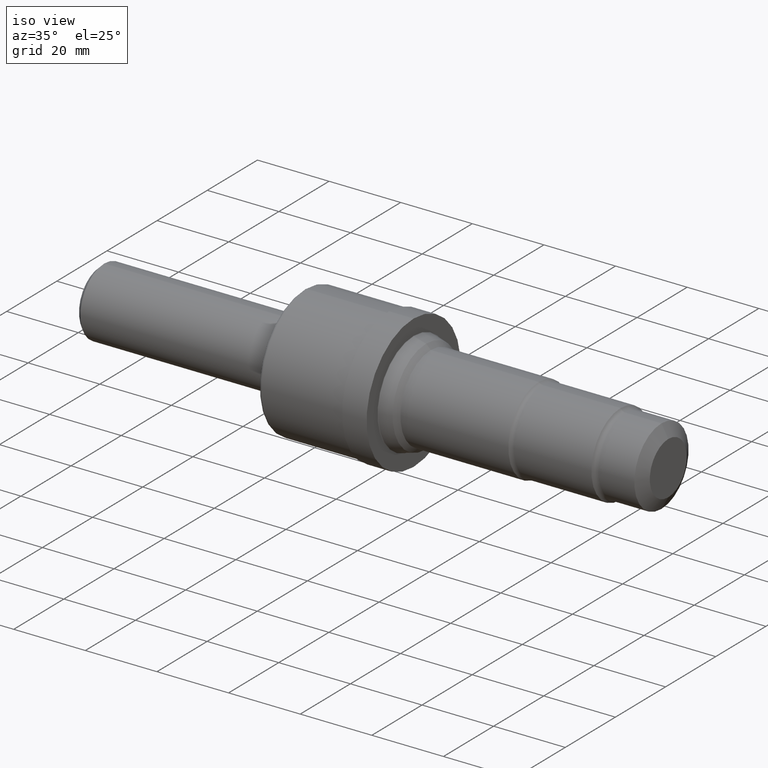
[diagram: clean part render]
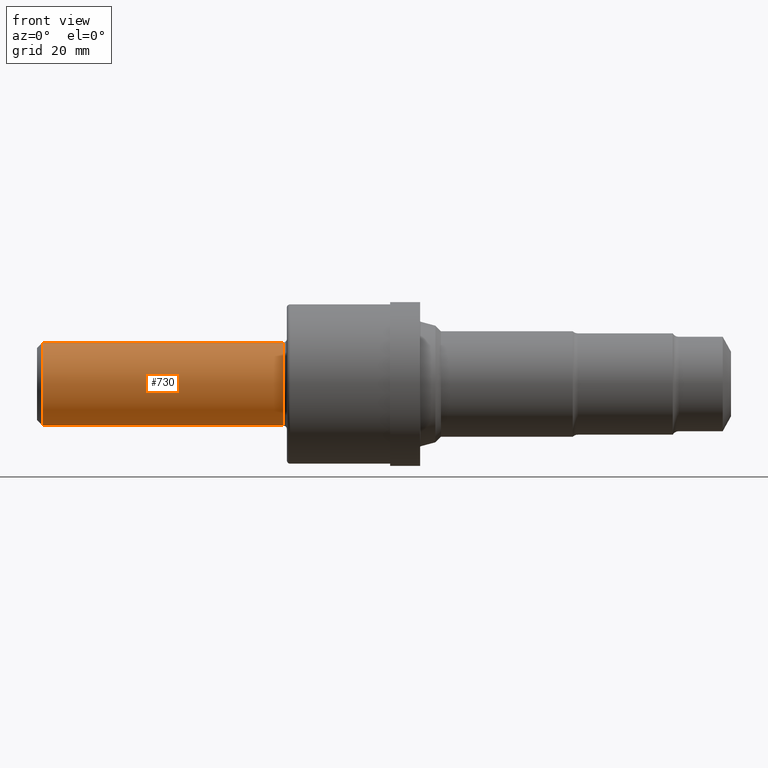
[diagram: tour spotlight — one face highlighted and labeled with its STEP entity id]
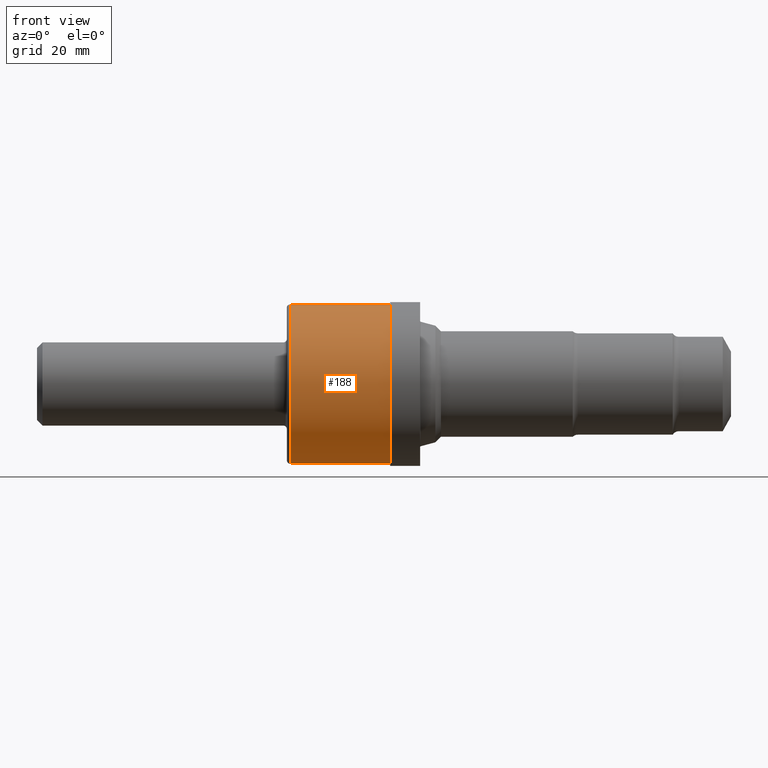
[diagram: tour spotlight — one face highlighted and labeled with its STEP entity id]
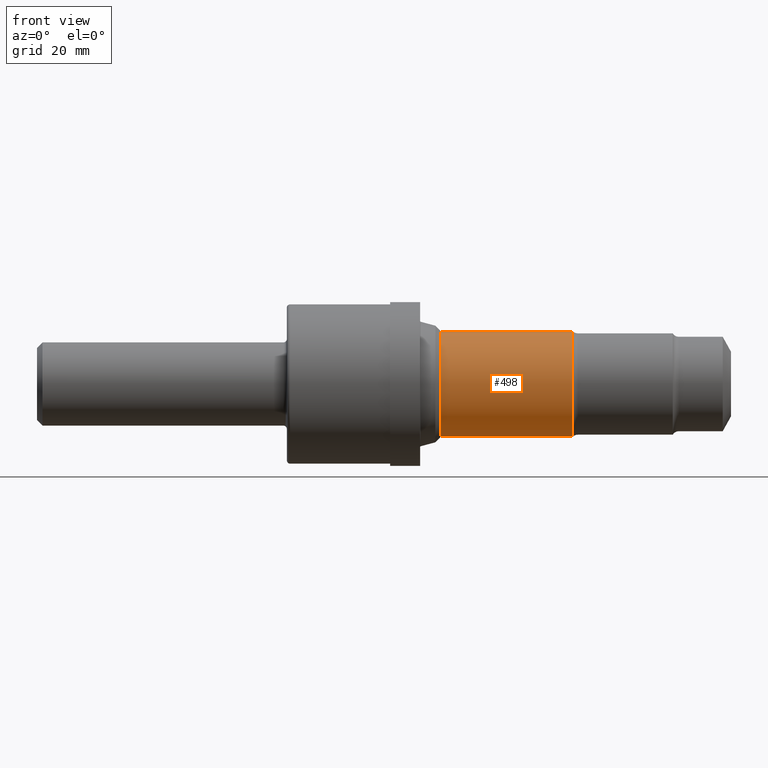
[diagram: tour spotlight — one face highlighted and labeled with its STEP entity id]
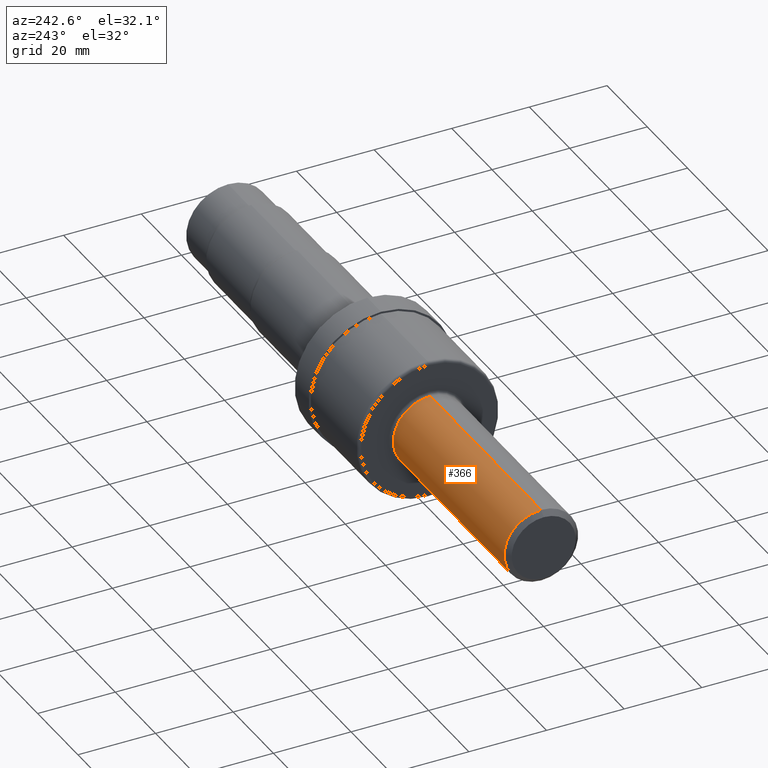
[diagram: tour spotlight — one face highlighted and labeled with its STEP entity id]
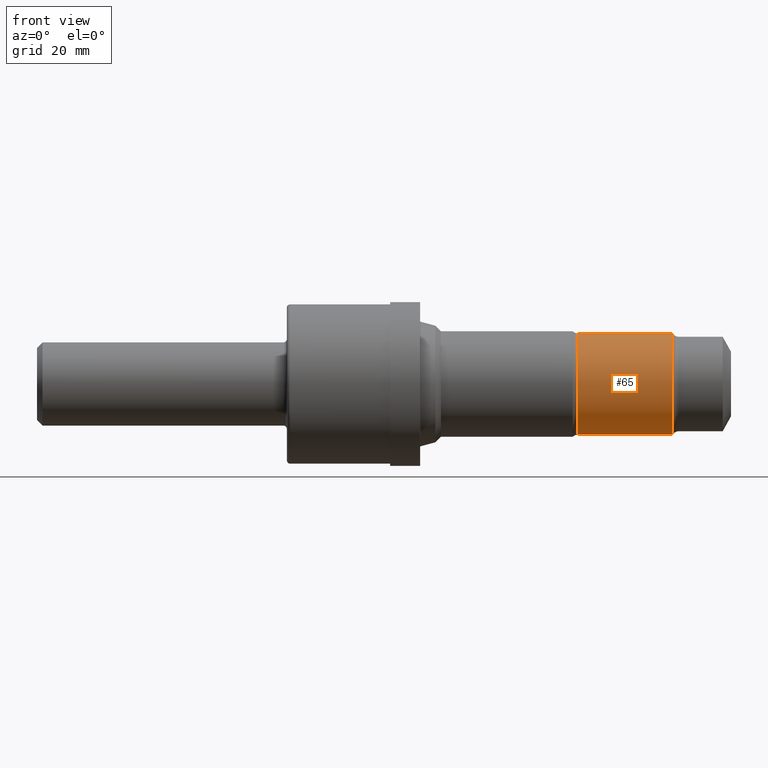
[diagram: tour spotlight — one face highlighted and labeled with its STEP entity id]
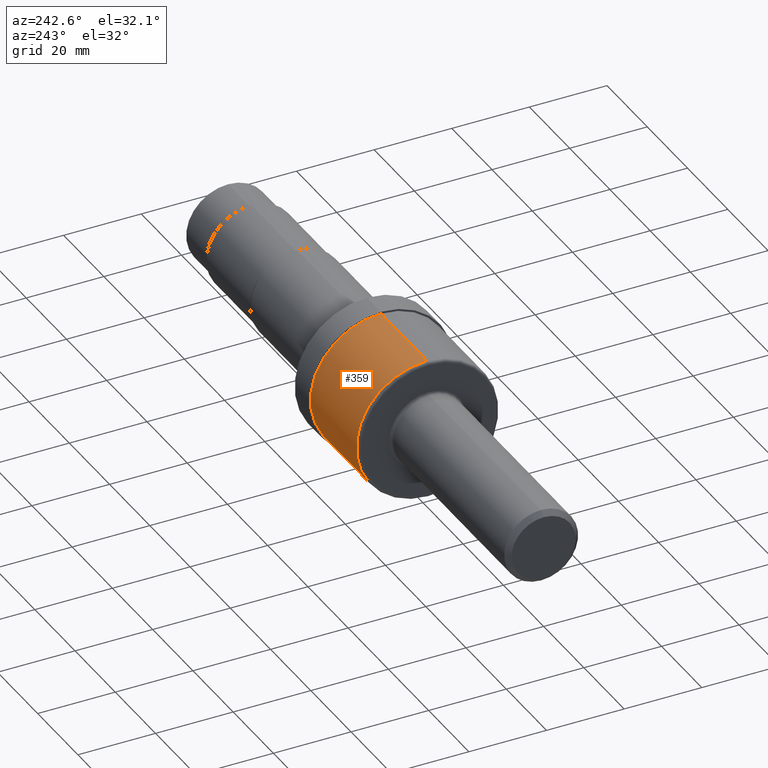
[diagram: tour spotlight — one face highlighted and labeled with its STEP entity id]
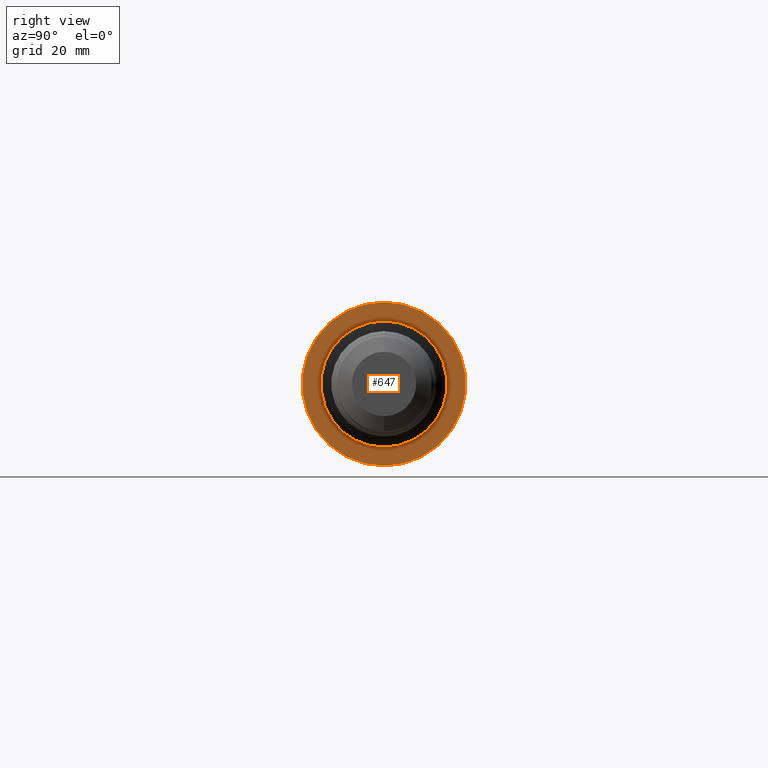
[diagram: tour spotlight — one face highlighted and labeled with its STEP entity id]
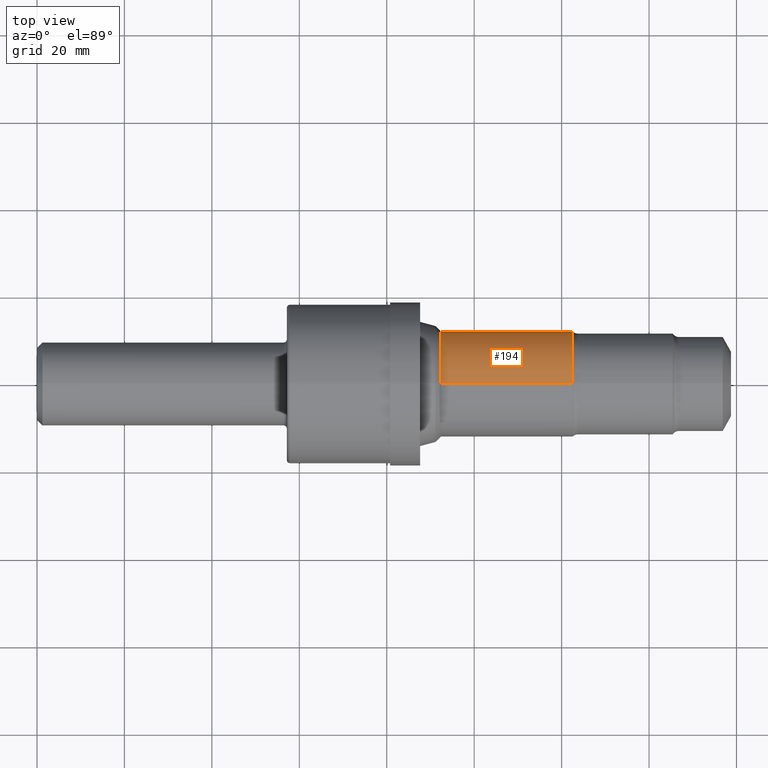
[diagram: tour spotlight — one face highlighted and labeled with its STEP entity id]
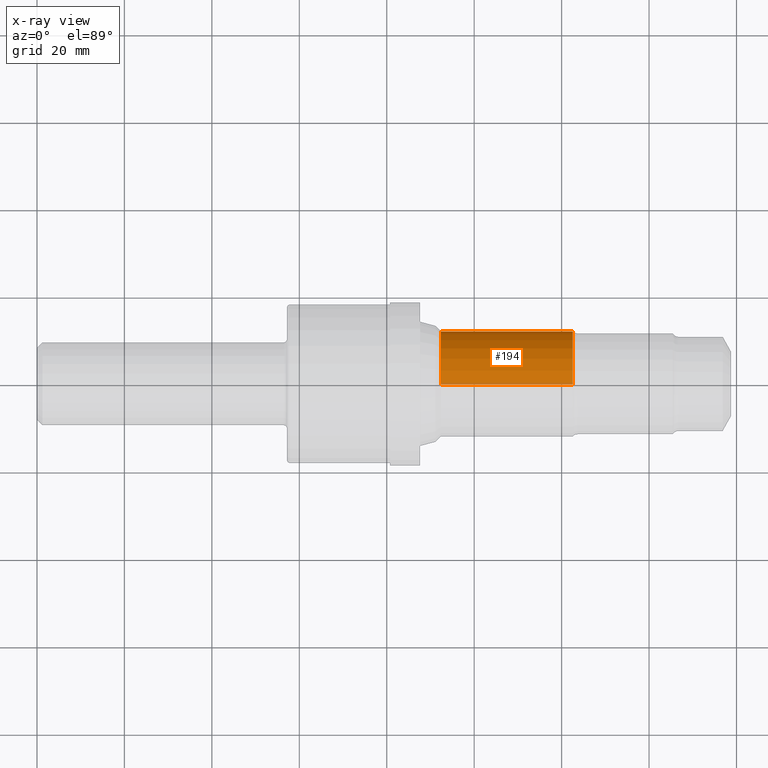
[diagram: x-ray of the same camera — body ghosted, this tour face saturated]
A machine part: a face-by-face anatomy tour. The part has 35 B-rep faces; the first image is the clean iso view, then the 8 largest visible faces are spotlighted one at a time (largest first), each with its STEP entity span.

Face 1 — front view, entity #730. In plain terms, the highlighted cylindrical surface (partial cylindrical patch) has radius 9.5212 mm, axis along (-1, -0, -0).
Definition (entity closure, byte-faithful):
#1 = CARTESIAN_POINT ( 'NONE',  ( 0.05000000000000000278, 4.590588526603853748E-17, 0.3748500000000000165 ) ) ;
#9 = CARTESIAN_POINT ( 'NONE',  ( 2.220000000000000195, 4.590588526603861143E-17, -0.3748500000000006271 ) ) ;
#56 = AXIS2_PLACEMENT_3D ( 'NONE', #600, #116, #878 ) ;
#96 = VERTEX_POINT ( 'NONE', #1 ) ;
#109 = VECTOR ( 'NONE', #605, 39.37007874015748143 ) ;
#113 = DIRECTION ( 'NONE',  ( -1.000000000000000000, -0.0000000000000000000, -0.0000000000000000000 ) ) ;
#116 = DIRECTION ( 'NONE',  ( -1.000000000000000000, -0.0000000000000000000, -0.0000000000000000000 ) ) ;
#131 = CIRCLE ( 'NONE', #794, 0.3748500000000006271 ) ;
#193 = EDGE_LOOP ( 'NONE', ( #481, #851, #370, #455 ) ) ;
#214 = EDGE_CURVE ( 'NONE', #436, #96, #929, .T. ) ;
#237 = CARTESIAN_POINT ( 'NONE',  ( 0.0000000000000000000, 4.590588526603858678E-17, -0.3748500000000003496 ) ) ;
#246 = AXIS2_PLACEMENT_3D ( 'NONE', #294, #378, #944 ) ;
#288 = VERTEX_POINT ( 'NONE', #9 ) ;
#294 = CARTESIAN_POINT ( 'NONE',  ( 0.0000000000000000000, 0.0000000000000000000, 0.0000000000000000000 ) ) ;
#299 = CARTESIAN_POINT ( 'NONE',  ( 2.220000000000000195, 0.0000000000000000000, 0.3748500000000006271 ) ) ;
#332 = LINE ( 'NONE', #237, #109 ) ;
#334 = CARTESIAN_POINT ( 'NONE',  ( 2.220000000000000195, 0.0000000000000000000, 0.0000000000000000000 ) ) ;
#363 = CARTESIAN_POINT ( 'NONE',  ( 0.0000000000000000000, 0.0000000000000000000, 0.3748500000000003496 ) ) ;
#370 = ORIENTED_EDGE ( 'NONE', *, *, #676, .T. ) ;
#378 = DIRECTION ( 'NONE',  ( -1.000000000000000000, -0.0000000000000000000, -0.0000000000000000000 ) ) ;
#436 = VERTEX_POINT ( 'NONE', #516 ) ;
#443 = DIRECTION ( 'NONE',  ( -1.000000000000000000, -0.0000000000000000000, -0.0000000000000000000 ) ) ;
#455 = ORIENTED_EDGE ( 'NONE', *, *, #214, .F. ) ;
#470 = EDGE_CURVE ( 'NONE', #288, #768, #131, .T. ) ;
#481 = ORIENTED_EDGE ( 'NONE', *, *, #847, .F. ) ;
#516 = CARTESIAN_POINT ( 'NONE',  ( 0.05000000000000000278, 0.0000000000000000000, -0.3748500000000000165 ) ) ;
#571 = FACE_OUTER_BOUND ( 'NONE', #193, .T. ) ;
#600 = CARTESIAN_POINT ( 'NONE',  ( 0.05000000000000000278, 0.0000000000000000000, 0.0000000000000000000 ) ) ;
#605 = DIRECTION ( 'NONE',  ( -1.000000000000000000, -0.0000000000000000000, -0.0000000000000000000 ) ) ;
#623 = LINE ( 'NONE', #363, #818 ) ;
#676 = EDGE_CURVE ( 'NONE', #768, #96, #623, .T. ) ;
#730 = ADVANCED_FACE ( 'NONE', ( #571 ), #933, .T. ) ;
#768 = VERTEX_POINT ( 'NONE', #299 ) ;
#794 = AXIS2_PLACEMENT_3D ( 'NONE', #334, #113, #837 ) ;
#818 = VECTOR ( 'NONE', #443, 39.37007874015748143 ) ;
#837 = DIRECTION ( 'NONE',  ( 0.0000000000000000000, 0.0000000000000000000, 1.000000000000000000 ) ) ;
#847 = EDGE_CURVE ( 'NONE', #288, #436, #332, .T. ) ;
#851 = ORIENTED_EDGE ( 'NONE', *, *, #470, .T. ) ;
#878 = DIRECTION ( 'NONE',  ( 0.0000000000000000000, 0.0000000000000000000, 1.000000000000000000 ) ) ;
#929 = CIRCLE ( 'NONE', #56, 0.3748500000000000165 ) ;
#933 = CYLINDRICAL_SURFACE ( 'NONE', #246, 0.3748500000000003496 ) ;
#944 = DIRECTION ( 'NONE',  ( 0.0000000000000000000, 0.0000000000000000000, 1.000000000000000000 ) ) ;

Face 2 — front view, entity #188. In plain terms, the highlighted cylindrical surface (partial cylindrical patch) has radius 18.2245 mm, axis along (-1, -0, -0).
Definition (entity closure, byte-faithful):
#13 = DIRECTION ( 'NONE',  ( -1.000000000000000000, -0.0000000000000000000, -0.0000000000000000000 ) ) ;
#30 = ORIENTED_EDGE ( 'NONE', *, *, #183, .T. ) ;
#41 = LINE ( 'NONE', #81, #770 ) ;
#81 = CARTESIAN_POINT ( 'NONE',  ( 0.0000000000000000000, 8.786840783882260143E-17, -0.7175000000000000266 ) ) ;
#98 = CARTESIAN_POINT ( 'NONE',  ( 2.279999999999999805, 8.786840783882260143E-17, -0.7175000000000000266 ) ) ;
#139 = CARTESIAN_POINT ( 'NONE',  ( 3.180000000000000604, 0.0000000000000000000, 0.0000000000000000000 ) ) ;
#145 = AXIS2_PLACEMENT_3D ( 'NONE', #371, #744, #395 ) ;
#164 = VERTEX_POINT ( 'NONE', #98 ) ;
#183 = EDGE_CURVE ( 'NONE', #493, #263, #413, .T. ) ;
#188 = ADVANCED_FACE ( 'NONE', ( #222 ), #872, .T. ) ;
#220 = EDGE_CURVE ( 'NONE', #610, #164, #41, .T. ) ;
#222 = FACE_OUTER_BOUND ( 'NONE', #816, .T. ) ;
#224 = ORIENTED_EDGE ( 'NONE', *, *, #654, .F. ) ;
#263 = VERTEX_POINT ( 'NONE', #750 ) ;
#278 = AXIS2_PLACEMENT_3D ( 'NONE', #577, #440, #940 ) ;
#279 = VECTOR ( 'NONE', #592, 39.37007874015748143 ) ;
#362 = ORIENTED_EDGE ( 'NONE', *, *, #407, .T. ) ;
#371 = CARTESIAN_POINT ( 'NONE',  ( 0.0000000000000000000, 0.0000000000000000000, 0.0000000000000000000 ) ) ;
#383 = CIRCLE ( 'NONE', #930, 0.7175000000000000266 ) ;
#395 = DIRECTION ( 'NONE',  ( 0.0000000000000000000, 0.0000000000000000000, 1.000000000000000000 ) ) ;
#407 = EDGE_CURVE ( 'NONE', #610, #493, #383, .T. ) ;
#413 = LINE ( 'NONE', #458, #279 ) ;
#440 = DIRECTION ( 'NONE',  ( -1.000000000000000000, -0.0000000000000000000, -0.0000000000000000000 ) ) ;
#458 = CARTESIAN_POINT ( 'NONE',  ( 0.0000000000000000000, 0.0000000000000000000, 0.7175000000000000266 ) ) ;
#493 = VERTEX_POINT ( 'NONE', #766 ) ;
#566 = CARTESIAN_POINT ( 'NONE',  ( 3.180000000000000604, 8.786840783882260143E-17, -0.7175000000000000266 ) ) ;
#577 = CARTESIAN_POINT ( 'NONE',  ( 2.279999999999999805, 0.0000000000000000000, 0.0000000000000000000 ) ) ;
#592 = DIRECTION ( 'NONE',  ( -1.000000000000000000, -0.0000000000000000000, -0.0000000000000000000 ) ) ;
#595 = DIRECTION ( 'NONE',  ( -1.000000000000000000, -0.0000000000000000000, -0.0000000000000000000 ) ) ;
#610 = VERTEX_POINT ( 'NONE', #566 ) ;
#641 = ORIENTED_EDGE ( 'NONE', *, *, #220, .F. ) ;
#654 = EDGE_CURVE ( 'NONE', #164, #263, #860, .T. ) ;
#744 = DIRECTION ( 'NONE',  ( -1.000000000000000000, -0.0000000000000000000, -0.0000000000000000000 ) ) ;
#750 = CARTESIAN_POINT ( 'NONE',  ( 2.279999999999999805, 0.0000000000000000000, 0.7175000000000000266 ) ) ;
#766 = CARTESIAN_POINT ( 'NONE',  ( 3.180000000000000604, 0.0000000000000000000, 0.7175000000000000266 ) ) ;
#770 = VECTOR ( 'NONE', #595, 39.37007874015748143 ) ;
#816 = EDGE_LOOP ( 'NONE', ( #641, #362, #30, #224 ) ) ;
#817 = DIRECTION ( 'NONE',  ( 0.0000000000000000000, 0.0000000000000000000, 1.000000000000000000 ) ) ;
#860 = CIRCLE ( 'NONE', #278, 0.7175000000000000266 ) ;
#872 = CYLINDRICAL_SURFACE ( 'NONE', #145, 0.7175000000000000266 ) ;
#930 = AXIS2_PLACEMENT_3D ( 'NONE', #139, #13, #817 ) ;
#940 = DIRECTION ( 'NONE',  ( 0.0000000000000000000, 0.0000000000000000000, 1.000000000000000000 ) ) ;

Face 3 — front view, entity #498. In plain terms, the highlighted cylindrical surface (partial cylindrical patch) has radius 12.065 mm, axis along (-1, -0, -0).
Definition (entity closure, byte-faithful):
#8 = CARTESIAN_POINT ( 'NONE',  ( 4.825000000000000178, 5.817072295949927179E-17, -0.4749999999999999778 ) ) ;
#89 = CARTESIAN_POINT ( 'NONE',  ( 0.0000000000000000000, 0.0000000000000000000, 0.4749999999999999778 ) ) ;
#108 = DIRECTION ( 'NONE',  ( 0.0000000000000000000, 0.0000000000000000000, 1.000000000000000000 ) ) ;
#165 = CARTESIAN_POINT ( 'NONE',  ( 4.825000000000000178, 0.0000000000000000000, 0.0000000000000000000 ) ) ;
#184 = CARTESIAN_POINT ( 'NONE',  ( 4.825000000000000178, 0.0000000000000000000, 0.4749999999999999778 ) ) ;
#203 = VERTEX_POINT ( 'NONE', #884 ) ;
#232 = DIRECTION ( 'NONE',  ( -1.000000000000000000, -0.0000000000000000000, -0.0000000000000000000 ) ) ;
#248 = DIRECTION ( 'NONE',  ( -1.000000000000000000, -0.0000000000000000000, -0.0000000000000000000 ) ) ;
#253 = CIRCLE ( 'NONE', #947, 0.4749999999999999778 ) ;
#270 = VERTEX_POINT ( 'NONE', #184 ) ;
#316 = CARTESIAN_POINT ( 'NONE',  ( 3.638023011444505350, 6.123374900196049831E-17, -0.4749999999999999778 ) ) ;
#335 = EDGE_CURVE ( 'NONE', #724, #776, #389, .T. ) ;
#389 = LINE ( 'NONE', #711, #907 ) ;
#434 = DIRECTION ( 'NONE',  ( -1.000000000000000000, -0.0000000000000000000, -0.0000000000000000000 ) ) ;
#465 = ORIENTED_EDGE ( 'NONE', *, *, #915, .T. ) ;
#477 = CARTESIAN_POINT ( 'NONE',  ( 0.0000000000000000000, 0.0000000000000000000, 0.0000000000000000000 ) ) ;
#479 = AXIS2_PLACEMENT_3D ( 'NONE', #165, #248, #828 ) ;
#487 = CIRCLE ( 'NONE', #479, 0.4749999999999999778 ) ;
#491 = ORIENTED_EDGE ( 'NONE', *, *, #335, .F. ) ;
#498 = ADVANCED_FACE ( 'NONE', ( #949 ), #559, .T. ) ;
#506 = VECTOR ( 'NONE', #773, 39.37007874015748143 ) ;
#515 = DIRECTION ( 'NONE',  ( -1.000000000000000000, -0.0000000000000000000, -0.0000000000000000000 ) ) ;
#530 = DIRECTION ( 'NONE',  ( 0.0000000000000000000, 0.0000000000000000000, 1.000000000000000000 ) ) ;
#559 = CYLINDRICAL_SURFACE ( 'NONE', #627, 0.4749999999999999778 ) ;
#582 = CARTESIAN_POINT ( 'NONE',  ( 3.638023011444505350, 0.0000000000000000000, 0.0000000000000000000 ) ) ;
#624 = ORIENTED_EDGE ( 'NONE', *, *, #712, .F. ) ;
#627 = AXIS2_PLACEMENT_3D ( 'NONE', #477, #434, #108 ) ;
#689 = EDGE_LOOP ( 'NONE', ( #491, #465, #875, #624 ) ) ;
#711 = CARTESIAN_POINT ( 'NONE',  ( 0.0000000000000000000, 5.817072295949927179E-17, -0.4749999999999999778 ) ) ;
#712 = EDGE_CURVE ( 'NONE', #776, #203, #253, .T. ) ;
#724 = VERTEX_POINT ( 'NONE', #8 ) ;
#773 = DIRECTION ( 'NONE',  ( -1.000000000000000000, -0.0000000000000000000, -0.0000000000000000000 ) ) ;
#776 = VERTEX_POINT ( 'NONE', #316 ) ;
#828 = DIRECTION ( 'NONE',  ( 0.0000000000000000000, 0.0000000000000000000, 1.000000000000000000 ) ) ;
#839 = EDGE_CURVE ( 'NONE', #270, #203, #891, .T. ) ;
#875 = ORIENTED_EDGE ( 'NONE', *, *, #839, .T. ) ;
#884 = CARTESIAN_POINT ( 'NONE',  ( 3.638023011444505350, 0.0000000000000000000, 0.4749999999999999778 ) ) ;
#891 = LINE ( 'NONE', #89, #506 ) ;
#907 = VECTOR ( 'NONE', #232, 39.37007874015748143 ) ;
#915 = EDGE_CURVE ( 'NONE', #724, #270, #487, .T. ) ;
#947 = AXIS2_PLACEMENT_3D ( 'NONE', #582, #515, #530 ) ;
#949 = FACE_OUTER_BOUND ( 'NONE', #689, .T. ) ;

Face 4 — auxiliary view, entity #366. In plain terms, the highlighted cylindrical surface (partial cylindrical patch) has radius 9.5212 mm, axis along (-1, -0, -0).
Definition (entity closure, byte-faithful):
#1 = CARTESIAN_POINT ( 'NONE',  ( 0.05000000000000000278, 4.590588526603853748E-17, 0.3748500000000000165 ) ) ;
#9 = CARTESIAN_POINT ( 'NONE',  ( 2.220000000000000195, 4.590588526603861143E-17, -0.3748500000000006271 ) ) ;
#96 = VERTEX_POINT ( 'NONE', #1 ) ;
#109 = VECTOR ( 'NONE', #605, 39.37007874015748143 ) ;
#111 = AXIS2_PLACEMENT_3D ( 'NONE', #114, #418, #227 ) ;
#114 = CARTESIAN_POINT ( 'NONE',  ( 2.220000000000000195, 0.0000000000000000000, 0.0000000000000000000 ) ) ;
#209 = AXIS2_PLACEMENT_3D ( 'NONE', #738, #579, #806 ) ;
#227 = DIRECTION ( 'NONE',  ( 0.0000000000000000000, 0.0000000000000000000, 1.000000000000000000 ) ) ;
#237 = CARTESIAN_POINT ( 'NONE',  ( 0.0000000000000000000, 4.590588526603858678E-17, -0.3748500000000003496 ) ) ;
#288 = VERTEX_POINT ( 'NONE', #9 ) ;
#299 = CARTESIAN_POINT ( 'NONE',  ( 2.220000000000000195, 0.0000000000000000000, 0.3748500000000006271 ) ) ;
#332 = LINE ( 'NONE', #237, #109 ) ;
#358 = CIRCLE ( 'NONE', #787, 0.3748500000000000165 ) ;
#363 = CARTESIAN_POINT ( 'NONE',  ( 0.0000000000000000000, 0.0000000000000000000, 0.3748500000000003496 ) ) ;
#366 = ADVANCED_FACE ( 'NONE', ( #633 ), #755, .T. ) ;
#390 = EDGE_CURVE ( 'NONE', #768, #288, #572, .T. ) ;
#397 = EDGE_CURVE ( 'NONE', #96, #436, #358, .T. ) ;
#418 = DIRECTION ( 'NONE',  ( -1.000000000000000000, -0.0000000000000000000, -0.0000000000000000000 ) ) ;
#436 = VERTEX_POINT ( 'NONE', #516 ) ;
#443 = DIRECTION ( 'NONE',  ( -1.000000000000000000, -0.0000000000000000000, -0.0000000000000000000 ) ) ;
#451 = ORIENTED_EDGE ( 'NONE', *, *, #847, .T. ) ;
#467 = ORIENTED_EDGE ( 'NONE', *, *, #397, .F. ) ;
#500 = DIRECTION ( 'NONE',  ( 0.0000000000000000000, 0.0000000000000000000, 1.000000000000000000 ) ) ;
#501 = CARTESIAN_POINT ( 'NONE',  ( 0.05000000000000000278, 0.0000000000000000000, 0.0000000000000000000 ) ) ;
#516 = CARTESIAN_POINT ( 'NONE',  ( 0.05000000000000000278, 0.0000000000000000000, -0.3748500000000000165 ) ) ;
#572 = CIRCLE ( 'NONE', #111, 0.3748500000000006271 ) ;
#579 = DIRECTION ( 'NONE',  ( -1.000000000000000000, -0.0000000000000000000, -0.0000000000000000000 ) ) ;
#596 = ORIENTED_EDGE ( 'NONE', *, *, #390, .T. ) ;
#605 = DIRECTION ( 'NONE',  ( -1.000000000000000000, -0.0000000000000000000, -0.0000000000000000000 ) ) ;
#619 = EDGE_LOOP ( 'NONE', ( #596, #451, #467, #760 ) ) ;
#623 = LINE ( 'NONE', #363, #818 ) ;
#633 = FACE_OUTER_BOUND ( 'NONE', #619, .T. ) ;
#676 = EDGE_CURVE ( 'NONE', #768, #96, #623, .T. ) ;
#738 = CARTESIAN_POINT ( 'NONE',  ( 0.0000000000000000000, 0.0000000000000000000, 0.0000000000000000000 ) ) ;
#746 = DIRECTION ( 'NONE',  ( -1.000000000000000000, -0.0000000000000000000, -0.0000000000000000000 ) ) ;
#755 = CYLINDRICAL_SURFACE ( 'NONE', #209, 0.3748500000000003496 ) ;
#760 = ORIENTED_EDGE ( 'NONE', *, *, #676, .F. ) ;
#768 = VERTEX_POINT ( 'NONE', #299 ) ;
#787 = AXIS2_PLACEMENT_3D ( 'NONE', #501, #746, #500 ) ;
#806 = DIRECTION ( 'NONE',  ( 0.0000000000000000000, 0.0000000000000000000, 1.000000000000000000 ) ) ;
#818 = VECTOR ( 'NONE', #443, 39.37007874015748143 ) ;
#847 = EDGE_CURVE ( 'NONE', #288, #436, #332, .T. ) ;

Face 5 — front view, entity #65. In plain terms, the highlighted cylindrical surface (partial cylindrical patch) has radius 11.5926 mm, axis along (-1, -0, -0).
Definition (entity closure, byte-faithful):
#24 = CARTESIAN_POINT ( 'NONE',  ( 4.869276856256965935, 0.0000000000000000000, 0.0000000000000000000 ) ) ;
#25 = VERTEX_POINT ( 'NONE', #521 ) ;
#37 = AXIS2_PLACEMENT_3D ( 'NONE', #805, #469, #869 ) ;
#43 = EDGE_CURVE ( 'NONE', #25, #68, #906, .T. ) ;
#65 = ADVANCED_FACE ( 'NONE', ( #256 ), #457, .T. ) ;
#68 = VERTEX_POINT ( 'NONE', #618 ) ;
#74 = CARTESIAN_POINT ( 'NONE',  ( 0.0000000000000000000, 5.589287991308519741E-17, -0.4563999999999999724 ) ) ;
#79 = DIRECTION ( 'NONE',  ( -1.000000000000000000, -0.0000000000000000000, -0.0000000000000000000 ) ) ;
#83 = LINE ( 'NONE', #423, #649 ) ;
#87 = CARTESIAN_POINT ( 'NONE',  ( 4.869276856256965935, 0.0000000000000000000, 0.4563999999999999724 ) ) ;
#117 = VERTEX_POINT ( 'NONE', #87 ) ;
#133 = DIRECTION ( 'NONE',  ( -1.000000000000000000, -0.0000000000000000000, -0.0000000000000000000 ) ) ;
#175 = AXIS2_PLACEMENT_3D ( 'NONE', #24, #855, #938 ) ;
#202 = DIRECTION ( 'NONE',  ( -1.000000000000000000, -0.0000000000000000000, -0.0000000000000000000 ) ) ;
#223 = ORIENTED_EDGE ( 'NONE', *, *, #43, .F. ) ;
#225 = EDGE_CURVE ( 'NONE', #442, #117, #83, .T. ) ;
#255 = ORIENTED_EDGE ( 'NONE', *, *, #612, .T. ) ;
#256 = FACE_OUTER_BOUND ( 'NONE', #430, .T. ) ;
#323 = CIRCLE ( 'NONE', #714, 0.4563999999999999724 ) ;
#372 = CARTESIAN_POINT ( 'NONE',  ( 5.725000000000000533, 0.0000000000000000000, 0.4563999999999999724 ) ) ;
#396 = CIRCLE ( 'NONE', #175, 0.4563999999999999724 ) ;
#423 = CARTESIAN_POINT ( 'NONE',  ( 0.0000000000000000000, 0.0000000000000000000, 0.4563999999999999724 ) ) ;
#430 = EDGE_LOOP ( 'NONE', ( #223, #255, #632, #771 ) ) ;
#442 = VERTEX_POINT ( 'NONE', #372 ) ;
#457 = CYLINDRICAL_SURFACE ( 'NONE', #37, 0.4563999999999999724 ) ;
#469 = DIRECTION ( 'NONE',  ( -1.000000000000000000, -0.0000000000000000000, -0.0000000000000000000 ) ) ;
#521 = CARTESIAN_POINT ( 'NONE',  ( 5.725000000000000533, 5.589287991308519741E-17, -0.4563999999999999724 ) ) ;
#528 = EDGE_CURVE ( 'NONE', #68, #117, #396, .T. ) ;
#612 = EDGE_CURVE ( 'NONE', #25, #442, #323, .T. ) ;
#618 = CARTESIAN_POINT ( 'NONE',  ( 4.869276856256965935, 5.703180143629223460E-17, -0.4563999999999999724 ) ) ;
#632 = ORIENTED_EDGE ( 'NONE', *, *, #225, .T. ) ;
#649 = VECTOR ( 'NONE', #133, 39.37007874015748143 ) ;
#709 = CARTESIAN_POINT ( 'NONE',  ( 5.725000000000000533, 0.0000000000000000000, 0.0000000000000000000 ) ) ;
#714 = AXIS2_PLACEMENT_3D ( 'NONE', #709, #202, #846 ) ;
#771 = ORIENTED_EDGE ( 'NONE', *, *, #528, .F. ) ;
#805 = CARTESIAN_POINT ( 'NONE',  ( 0.0000000000000000000, 0.0000000000000000000, 0.0000000000000000000 ) ) ;
#846 = DIRECTION ( 'NONE',  ( 0.0000000000000000000, 0.0000000000000000000, 1.000000000000000000 ) ) ;
#855 = DIRECTION ( 'NONE',  ( -1.000000000000000000, -0.0000000000000000000, -0.0000000000000000000 ) ) ;
#869 = DIRECTION ( 'NONE',  ( 0.0000000000000000000, 0.0000000000000000000, 1.000000000000000000 ) ) ;
#906 = LINE ( 'NONE', #74, #932 ) ;
#932 = VECTOR ( 'NONE', #79, 39.37007874015748143 ) ;
#938 = DIRECTION ( 'NONE',  ( 0.0000000000000000000, 0.0000000000000000000, 1.000000000000000000 ) ) ;

Face 6 — auxiliary view, entity #359. In plain terms, the highlighted cylindrical surface (partial cylindrical patch) has radius 18.2245 mm, axis along (-1, -0, -0).
Definition (entity closure, byte-faithful):
#41 = LINE ( 'NONE', #81, #770 ) ;
#45 = AXIS2_PLACEMENT_3D ( 'NONE', #655, #824, #743 ) ;
#81 = CARTESIAN_POINT ( 'NONE',  ( 0.0000000000000000000, 8.786840783882260143E-17, -0.7175000000000000266 ) ) ;
#95 = ORIENTED_EDGE ( 'NONE', *, *, #220, .T. ) ;
#98 = CARTESIAN_POINT ( 'NONE',  ( 2.279999999999999805, 8.786840783882260143E-17, -0.7175000000000000266 ) ) ;
#103 = DIRECTION ( 'NONE',  ( -1.000000000000000000, -0.0000000000000000000, -0.0000000000000000000 ) ) ;
#106 = ORIENTED_EDGE ( 'NONE', *, *, #183, .F. ) ;
#158 = AXIS2_PLACEMENT_3D ( 'NONE', #236, #300, #665 ) ;
#164 = VERTEX_POINT ( 'NONE', #98 ) ;
#171 = CYLINDRICAL_SURFACE ( 'NONE', #158, 0.7175000000000000266 ) ;
#183 = EDGE_CURVE ( 'NONE', #493, #263, #413, .T. ) ;
#220 = EDGE_CURVE ( 'NONE', #610, #164, #41, .T. ) ;
#236 = CARTESIAN_POINT ( 'NONE',  ( 0.0000000000000000000, 0.0000000000000000000, 0.0000000000000000000 ) ) ;
#263 = VERTEX_POINT ( 'NONE', #750 ) ;
#279 = VECTOR ( 'NONE', #592, 39.37007874015748143 ) ;
#300 = DIRECTION ( 'NONE',  ( -1.000000000000000000, -0.0000000000000000000, -0.0000000000000000000 ) ) ;
#302 = AXIS2_PLACEMENT_3D ( 'NONE', #360, #103, #928 ) ;
#359 = ADVANCED_FACE ( 'NONE', ( #822 ), #171, .T. ) ;
#360 = CARTESIAN_POINT ( 'NONE',  ( 3.180000000000000604, 0.0000000000000000000, 0.0000000000000000000 ) ) ;
#399 = EDGE_CURVE ( 'NONE', #263, #164, #553, .T. ) ;
#413 = LINE ( 'NONE', #458, #279 ) ;
#417 = CIRCLE ( 'NONE', #302, 0.7175000000000000266 ) ;
#452 = EDGE_LOOP ( 'NONE', ( #898, #95, #758, #106 ) ) ;
#458 = CARTESIAN_POINT ( 'NONE',  ( 0.0000000000000000000, 0.0000000000000000000, 0.7175000000000000266 ) ) ;
#493 = VERTEX_POINT ( 'NONE', #766 ) ;
#494 = EDGE_CURVE ( 'NONE', #493, #610, #417, .T. ) ;
#553 = CIRCLE ( 'NONE', #45, 0.7175000000000000266 ) ;
#566 = CARTESIAN_POINT ( 'NONE',  ( 3.180000000000000604, 8.786840783882260143E-17, -0.7175000000000000266 ) ) ;
#592 = DIRECTION ( 'NONE',  ( -1.000000000000000000, -0.0000000000000000000, -0.0000000000000000000 ) ) ;
#595 = DIRECTION ( 'NONE',  ( -1.000000000000000000, -0.0000000000000000000, -0.0000000000000000000 ) ) ;
#610 = VERTEX_POINT ( 'NONE', #566 ) ;
#655 = CARTESIAN_POINT ( 'NONE',  ( 2.279999999999999805, 0.0000000000000000000, 0.0000000000000000000 ) ) ;
#665 = DIRECTION ( 'NONE',  ( 0.0000000000000000000, 0.0000000000000000000, 1.000000000000000000 ) ) ;
#743 = DIRECTION ( 'NONE',  ( 0.0000000000000000000, 0.0000000000000000000, 1.000000000000000000 ) ) ;
#750 = CARTESIAN_POINT ( 'NONE',  ( 2.279999999999999805, 0.0000000000000000000, 0.7175000000000000266 ) ) ;
#758 = ORIENTED_EDGE ( 'NONE', *, *, #399, .F. ) ;
#766 = CARTESIAN_POINT ( 'NONE',  ( 3.180000000000000604, 0.0000000000000000000, 0.7175000000000000266 ) ) ;
#770 = VECTOR ( 'NONE', #595, 39.37007874015748143 ) ;
#822 = FACE_OUTER_BOUND ( 'NONE', #452, .T. ) ;
#824 = DIRECTION ( 'NONE',  ( -1.000000000000000000, -0.0000000000000000000, -0.0000000000000000000 ) ) ;
#898 = ORIENTED_EDGE ( 'NONE', *, *, #494, .T. ) ;
#928 = DIRECTION ( 'NONE',  ( 0.0000000000000000000, 0.0000000000000000000, 1.000000000000000000 ) ) ;

Face 7 — right view, entity #647. In plain terms, the highlighted planar face has unit normal (-1, 0, -0).
Definition (entity closure, byte-faithful):
#6 = VERTEX_POINT ( 'NONE', #834 ) ;
#16 = AXIS2_PLACEMENT_3D ( 'NONE', #291, #460, #650 ) ;
#31 = CIRCLE ( 'NONE', #693, 0.5677549524098421951 ) ;
#48 = ORIENTED_EDGE ( 'NONE', *, *, #753, .T. ) ;
#124 = CIRCLE ( 'NONE', #16, 0.7374999999999999334 ) ;
#166 = CARTESIAN_POINT ( 'NONE',  ( 3.450000000000000178, 0.0000000000000000000, 0.0000000000000000000 ) ) ;
#169 = CIRCLE ( 'NONE', #185, 0.7374999999999999334 ) ;
#176 = DIRECTION ( 'NONE',  ( -1.000000000000000000, 0.0000000000000000000, -0.0000000000000000000 ) ) ;
#185 = AXIS2_PLACEMENT_3D ( 'NONE', #877, #435, #204 ) ;
#204 = DIRECTION ( 'NONE',  ( 0.0000000000000000000, 0.0000000000000000000, 1.000000000000000000 ) ) ;
#241 = VERTEX_POINT ( 'NONE', #883 ) ;
#250 = DIRECTION ( 'NONE',  ( -1.000000000000000000, -0.0000000000000000000, -0.0000000000000000000 ) ) ;
#281 = ORIENTED_EDGE ( 'NONE', *, *, #652, .T. ) ;
#283 = CARTESIAN_POINT ( 'NONE',  ( 3.450000000000000622, 0.0000000000000000000, 0.7374999999999999334 ) ) ;
#291 = CARTESIAN_POINT ( 'NONE',  ( 3.450000000000000622, 0.0000000000000000000, 0.0000000000000000000 ) ) ;
#309 = DIRECTION ( 'NONE',  ( 0.0000000000000000000, 0.0000000000000000000, 1.000000000000000000 ) ) ;
#344 = DIRECTION ( 'NONE',  ( -0.0000000000000000000, 0.0000000000000000000, 1.000000000000000000 ) ) ;
#355 = EDGE_CURVE ( 'NONE', #241, #680, #124, .T. ) ;
#369 = CARTESIAN_POINT ( 'NONE',  ( 3.450000000000000178, 0.0000000000000000000, 0.0000000000000000000 ) ) ;
#406 = PLANE ( 'NONE',  #777 ) ;
#435 = DIRECTION ( 'NONE',  ( -1.000000000000000000, -0.0000000000000000000, -0.0000000000000000000 ) ) ;
#460 = DIRECTION ( 'NONE',  ( -1.000000000000000000, -0.0000000000000000000, -0.0000000000000000000 ) ) ;
#478 = FACE_OUTER_BOUND ( 'NONE', #829, .T. ) ;
#504 = VERTEX_POINT ( 'NONE', #638 ) ;
#512 = ORIENTED_EDGE ( 'NONE', *, *, #355, .F. ) ;
#542 = EDGE_LOOP ( 'NONE', ( #281, #48 ) ) ;
#638 = CARTESIAN_POINT ( 'NONE',  ( 3.450000000000000178, 0.0000000000000000000, 0.5677549524098421951 ) ) ;
#647 = ADVANCED_FACE ( 'NONE', ( #478, #695 ), #406, .F. ) ;
#648 = DIRECTION ( 'NONE',  ( 0.0000000000000000000, 0.0000000000000000000, 1.000000000000000000 ) ) ;
#650 = DIRECTION ( 'NONE',  ( 0.0000000000000000000, 0.0000000000000000000, 1.000000000000000000 ) ) ;
#652 = EDGE_CURVE ( 'NONE', #504, #6, #842, .T. ) ;
#680 = VERTEX_POINT ( 'NONE', #283 ) ;
#693 = AXIS2_PLACEMENT_3D ( 'NONE', #369, #873, #309 ) ;
#695 = FACE_BOUND ( 'NONE', #542, .T. ) ;
#718 = CARTESIAN_POINT ( 'NONE',  ( 3.450000000000000622, 0.7374999999999999334, 0.0000000000000000000 ) ) ;
#734 = EDGE_CURVE ( 'NONE', #680, #241, #169, .T. ) ;
#753 = EDGE_CURVE ( 'NONE', #6, #504, #31, .T. ) ;
#777 = AXIS2_PLACEMENT_3D ( 'NONE', #718, #176, #344 ) ;
#829 = EDGE_LOOP ( 'NONE', ( #844, #512 ) ) ;
#834 = CARTESIAN_POINT ( 'NONE',  ( 3.450000000000000178, 6.952992851687711289E-17, -0.5677549524098421951 ) ) ;
#842 = CIRCLE ( 'NONE', #903, 0.5677549524098421951 ) ;
#844 = ORIENTED_EDGE ( 'NONE', *, *, #734, .F. ) ;
#873 = DIRECTION ( 'NONE',  ( -1.000000000000000000, -0.0000000000000000000, -0.0000000000000000000 ) ) ;
#877 = CARTESIAN_POINT ( 'NONE',  ( 3.450000000000000622, 0.0000000000000000000, 0.0000000000000000000 ) ) ;
#883 = CARTESIAN_POINT ( 'NONE',  ( 3.450000000000000622, 9.031770143711730242E-17, -0.7374999999999999334 ) ) ;
#903 = AXIS2_PLACEMENT_3D ( 'NONE', #166, #250, #648 ) ;

Face 8 — top view, entity #194. An x-ray twin of the same camera follows (body ghosted, this face saturated) — the face is partly hidden behind the body. In plain terms, the highlighted cylindrical surface (partial cylindrical patch) has radius 12.065 mm, axis along (-1, -0, -0).
Definition (entity closure, byte-faithful):
#8 = CARTESIAN_POINT ( 'NONE',  ( 4.825000000000000178, 5.817072295949927179E-17, -0.4749999999999999778 ) ) ;
#39 = AXIS2_PLACEMENT_3D ( 'NONE', #867, #523, #748 ) ;
#61 = CARTESIAN_POINT ( 'NONE',  ( 0.0000000000000000000, 0.0000000000000000000, 0.0000000000000000000 ) ) ;
#89 = CARTESIAN_POINT ( 'NONE',  ( 0.0000000000000000000, 0.0000000000000000000, 0.4749999999999999778 ) ) ;
#125 = AXIS2_PLACEMENT_3D ( 'NONE', #509, #735, #670 ) ;
#184 = CARTESIAN_POINT ( 'NONE',  ( 4.825000000000000178, 0.0000000000000000000, 0.4749999999999999778 ) ) ;
#194 = ADVANCED_FACE ( 'NONE', ( #708 ), #555, .T. ) ;
#197 = CIRCLE ( 'NONE', #125, 0.4749999999999999778 ) ;
#203 = VERTEX_POINT ( 'NONE', #884 ) ;
#207 = ORIENTED_EDGE ( 'NONE', *, *, #839, .F. ) ;
#232 = DIRECTION ( 'NONE',  ( -1.000000000000000000, -0.0000000000000000000, -0.0000000000000000000 ) ) ;
#270 = VERTEX_POINT ( 'NONE', #184 ) ;
#295 = ORIENTED_EDGE ( 'NONE', *, *, #717, .T. ) ;
#316 = CARTESIAN_POINT ( 'NONE',  ( 3.638023011444505350, 6.123374900196049831E-17, -0.4749999999999999778 ) ) ;
#335 = EDGE_CURVE ( 'NONE', #724, #776, #389, .T. ) ;
#353 = DIRECTION ( 'NONE',  ( 0.0000000000000000000, 0.0000000000000000000, 1.000000000000000000 ) ) ;
#385 = DIRECTION ( 'NONE',  ( -1.000000000000000000, -0.0000000000000000000, -0.0000000000000000000 ) ) ;
#389 = LINE ( 'NONE', #711, #907 ) ;
#405 = CIRCLE ( 'NONE', #39, 0.4749999999999999778 ) ;
#472 = EDGE_LOOP ( 'NONE', ( #295, #736, #675, #207 ) ) ;
#505 = AXIS2_PLACEMENT_3D ( 'NONE', #61, #385, #353 ) ;
#506 = VECTOR ( 'NONE', #773, 39.37007874015748143 ) ;
#509 = CARTESIAN_POINT ( 'NONE',  ( 4.825000000000000178, 0.0000000000000000000, 0.0000000000000000000 ) ) ;
#523 = DIRECTION ( 'NONE',  ( -1.000000000000000000, -0.0000000000000000000, -0.0000000000000000000 ) ) ;
#555 = CYLINDRICAL_SURFACE ( 'NONE', #505, 0.4749999999999999778 ) ;
#670 = DIRECTION ( 'NONE',  ( 0.0000000000000000000, 0.0000000000000000000, 1.000000000000000000 ) ) ;
#675 = ORIENTED_EDGE ( 'NONE', *, *, #740, .F. ) ;
#708 = FACE_OUTER_BOUND ( 'NONE', #472, .T. ) ;
#711 = CARTESIAN_POINT ( 'NONE',  ( 0.0000000000000000000, 5.817072295949927179E-17, -0.4749999999999999778 ) ) ;
#717 = EDGE_CURVE ( 'NONE', #270, #724, #197, .T. ) ;
#724 = VERTEX_POINT ( 'NONE', #8 ) ;
#735 = DIRECTION ( 'NONE',  ( -1.000000000000000000, -0.0000000000000000000, -0.0000000000000000000 ) ) ;
#736 = ORIENTED_EDGE ( 'NONE', *, *, #335, .T. ) ;
#740 = EDGE_CURVE ( 'NONE', #203, #776, #405, .T. ) ;
#748 = DIRECTION ( 'NONE',  ( 0.0000000000000000000, 0.0000000000000000000, 1.000000000000000000 ) ) ;
#773 = DIRECTION ( 'NONE',  ( -1.000000000000000000, -0.0000000000000000000, -0.0000000000000000000 ) ) ;
#776 = VERTEX_POINT ( 'NONE', #316 ) ;
#839 = EDGE_CURVE ( 'NONE', #270, #203, #891, .T. ) ;
#867 = CARTESIAN_POINT ( 'NONE',  ( 3.638023011444505350, 0.0000000000000000000, 0.0000000000000000000 ) ) ;
#884 = CARTESIAN_POINT ( 'NONE',  ( 3.638023011444505350, 0.0000000000000000000, 0.4749999999999999778 ) ) ;
#891 = LINE ( 'NONE', #89, #506 ) ;
#907 = VECTOR ( 'NONE', #232, 39.37007874015748143 ) ;